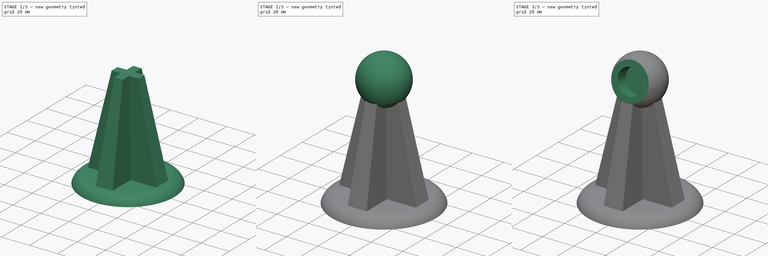
[diagram: build sequence overview — one tinted view per stage of 3, left to right]
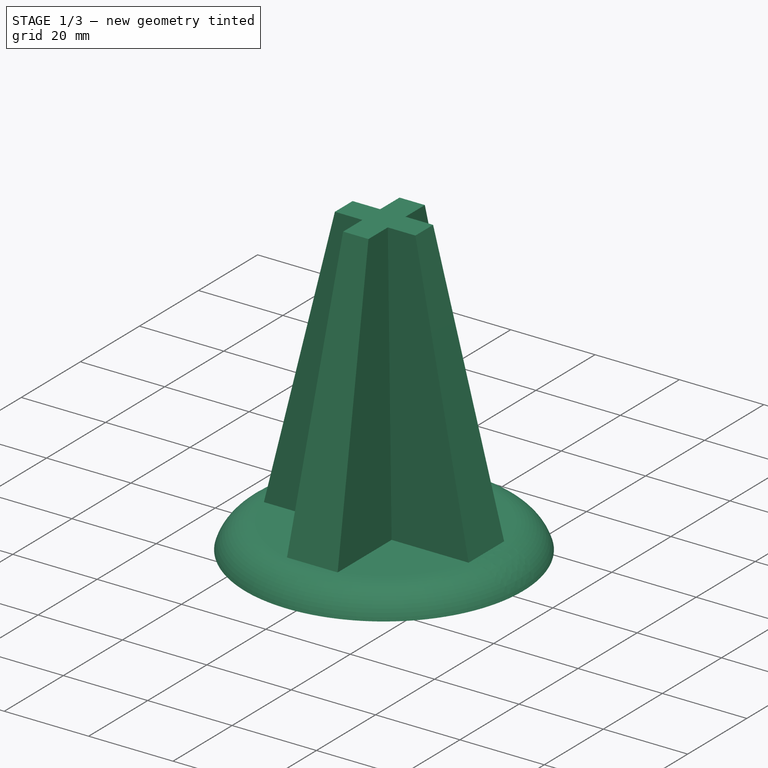
[diagram: stage 1 of 3 — iso view after this stage's code; geometry added in this stage tinted green]
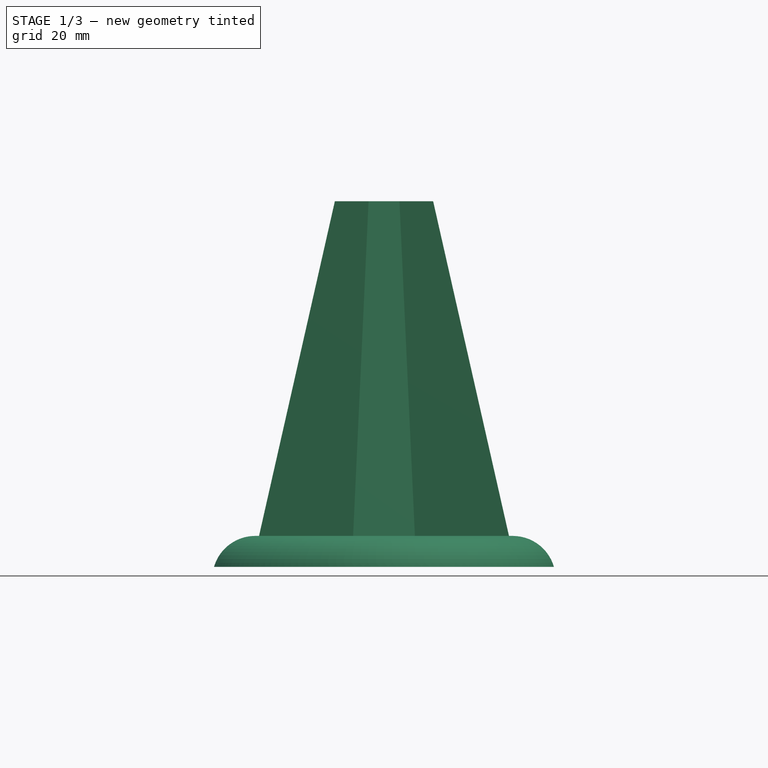
[diagram: stage 1 of 3 — front view after this stage's code; geometry added in this stage tinted green]
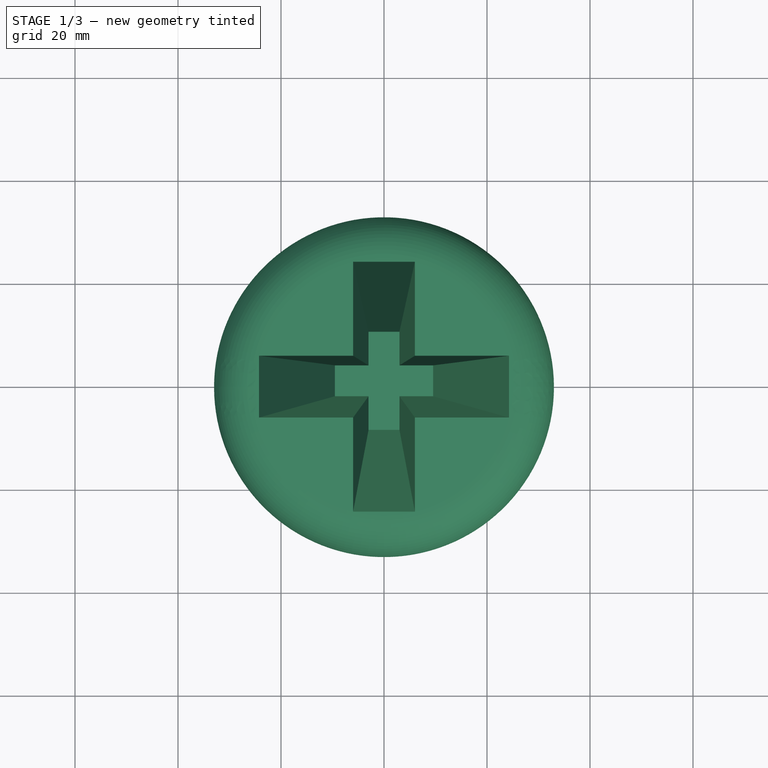
[diagram: stage 1 of 3 — top view after this stage's code; geometry added in this stage tinted green]
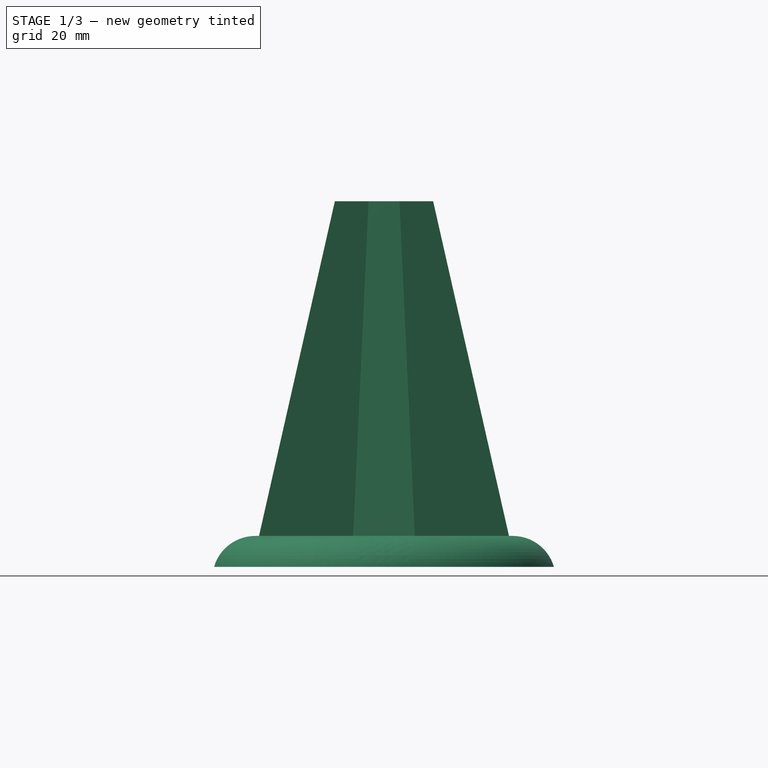
[diagram: stage 1 of 3 — right view after this stage's code; geometry added in this stage tinted green]
FCSTD DOCUMENT  (FreeCAD 0.20R29410 (Git))
Label: MangoJelly_Solutions_Tutorial_Ep12_1
License: All rights reserved
LicenseURL: http://en.wikipedia.org/wiki/All_rights_reserved
objects: Sketcher::SketchObject×6, PartDesign::Pocket×2, PartDesign::Revolution×1, PartDesign::AdditiveLoft×1, PartDesign::AdditiveSphere×1, PartDesign::Plane×1, PartDesign::Body×1, TechDraw::DrawSVGTemplate×1, TechDraw::DrawViewPart×1, TechDraw::DrawViewAnnotation×1, TechDraw::DrawPage×1
note: 18 computed .brp shape members not serialized (recipe doc carries the construction recipe); baked Part::Feature solids carry a one-line shape summary decoded from their .brp

FEATURE [Sketcher::SketchObject] Sketch  label="MasterSketch"
  FullyConstrained = true
  MapMode = 5
  Placement = pos=(0,0,0) rot=(1,0,0;1.5708rad)
  Support = -> [XZ_Plane]
  sketch-geometry (8):
    g0: LineSegment StartX=-25 StartY=0 StartZ=0 EndX=0 EndY=0 EndZ=0
    g1: LineSegment StartX=0 StartY=0 StartZ=0 EndX=25 EndY=0 EndZ=0
    g2: LineSegment StartX=25 StartY=0 StartZ=0 EndX=25 EndY=6 EndZ=0
    g3: LineSegment StartX=0 StartY=0 StartZ=0 EndX=0 EndY=65 EndZ=0
    g4: Circle CenterX=0 CenterY=65 CenterZ=0 NormalX=0 NormalY=0 NormalZ=1 AngleXU=0 Radius=15
    g5: LineSegment StartX=0 StartY=65 StartZ=0 EndX=10 EndY=65 EndZ=0
    g6: LineSegment StartX=-25 StartY=0 StartZ=0 EndX=-33 EndY=0 EndZ=0
    g7: LineSegment StartX=0 StartY=65 StartZ=0 EndX=-8 EndY=65 EndZ=0
  constraints (23):
    c: PointOnObject(g0,g-1)
    c: Coincident(g0,g-1)
    c: Coincident(g0,g1)
    c: PointOnObject(g1,g-1)
    c: Coincident(g1,g2)
    c: Vertical(g2)
    c: DistanceX(g0,g0) = 25  'BaseProfileRadius'
    c: Equal(g1,g0)
    c: DistanceY(g2,g2) = 6  'BaseThickness'
    c: Coincident(g3,g0)
    c: PointOnObject(g3,g-2)
    c: DistanceY(g3,g3) = 65  'LoftHeight'
    c: Coincident(g4,g3)
    c: Radius(g4) = 15  'SphereRadius'
    c: Coincident(g5,g3)
    c: Horizontal(g5)
    c: DistanceX(g5,g5) = 10  'TopProfileRadius'
    c: Coincident(g6,g0)
    c: Horizontal(g6)
    c: DistanceX(g6,g6) = 8  'Overhang'
    c: Coincident(g7,g3)
    c: Horizontal(g7)
    c: DistanceX(g7,g7) = 8  'SphereHoleRadius'
FEATURE [Sketcher::SketchObject] Sketch001
  FullyConstrained = true
  MapMode = 5
  Placement = pos=(0,0,0) rot=(1,0,0;1.5708rad)
  Support = -> [XZ_Plane]
  expr: Constraints[12] = <<MasterSketch>>.Constraints.Overhang
  expr: Constraints[5] = <<MasterSketch>>.Constraints.BaseThickness
  expr: Constraints[7] = <<MasterSketch>>.Constraints.BaseProfileRadius
  sketch-geometry (5):
    g0: LineSegment StartX=0 StartY=-6 StartZ=0 EndX=-25 EndY=-6 EndZ=0
    g1: LineSegment StartX=-25 StartY=-6 StartZ=0 EndX=-33 EndY=-6 EndZ=0
    g2: LineSegment StartX=0 StartY=-6 StartZ=0 EndX=0 EndY=0 EndZ=0
    g3: ArcOfCircle CenterX=-25 CenterY=-8.33333 CenterZ=0 NormalX=0 NormalY=0 NormalZ=1 AngleXU=0 Radius=8.33333 StartAngle=1.5708 EndAngle=2.8578
    g4: LineSegment StartX=-25 StartY=0 StartZ=0 EndX=0 EndY=0 EndZ=0
  constraints (14):
    c: PointOnObject(g0,g-2)
    c: Horizontal(g0)
    c: Coincident(g0,g1)
    c: Coincident(g2,g0)
    c: Coincident(g2,g-1)
    c: DistanceY(g2,g2) = 6
    c: Horizontal(g1)
    c: DistanceX(g0,g0) = 25
    c: Coincident(g3,g1)
    c: PointOnObject(g3,g-1)
    c: Vertical(g0,g3)
    c: Coincident(g4,g2)
    c: DistanceX(g1,g1) = 8
    c: Tangent(g4,g3) = 1.5708
FEATURE [PartDesign::Revolution] Revolution
  Angle = 360
  Axis = (0,2e-16,1)
  Base = (0,0,0)
  Placement = pos=(0,0,0) rot=(1,0,0;1.5708rad)
  Profile = -> Sketch001
  ReferenceAxis = -> Sketch001 [V_Axis]
FEATURE [Sketcher::SketchObject] Sketch002  label="BottomProfile"
  ExternalGeometry = -> [Revolution]
  FullyConstrained = true
  MapMode = 5
  Placement = pos=(0,0,0) rot=(0,0,1;3.14159rad)
  Support = -> [Revolution]
  sketch-geometry (13):
    g0: Circle CenterX=0 CenterY=0 CenterZ=0 NormalX=0 NormalY=0 NormalZ=1 AngleXU=0 Radius=25
    g1: LineSegment StartX=-6 StartY=24.2693 StartZ=0 EndX=6 EndY=24.2693 EndZ=0
    g2: LineSegment StartX=6 StartY=24.2693 StartZ=0 EndX=6 EndY=6 EndZ=0
    g3: LineSegment StartX=6 StartY=6 StartZ=0 EndX=24.2693 EndY=6 EndZ=0
    g4: LineSegment StartX=24.2693 StartY=6 StartZ=0 EndX=24.2693 EndY=-6 EndZ=0
    g5: LineSegment StartX=24.2693 StartY=-6 StartZ=0 EndX=6 EndY=-6 EndZ=0
    g6: LineSegment StartX=6 StartY=-6 StartZ=0 EndX=6 EndY=-24.2693 EndZ=0
    g7: LineSegment StartX=6 StartY=-24.2693 StartZ=0 EndX=-6 EndY=-24.2693 EndZ=0
    g8: LineSegment StartX=-6 StartY=-24.2693 StartZ=0 EndX=-6 EndY=-6 EndZ=0
    g9: LineSegment StartX=-6 StartY=-6 StartZ=0 EndX=-24.2693 EndY=-6 EndZ=0
    g10: LineSegment StartX=-24.2693 StartY=-6 StartZ=0 EndX=-24.2693 EndY=6 EndZ=0
    g11: LineSegment StartX=-24.2693 StartY=6 StartZ=0 EndX=-6 EndY=6 EndZ=0
    g12: LineSegment StartX=-6 StartY=6 StartZ=0 EndX=-6 EndY=24.2693 EndZ=0
  constraints (38):
    c: Coincident(g0,g-1)
    c: PointOnObject(g1,g0)
    c: PointOnObject(g1,g0)
    c: Horizontal(g1)
    c: Coincident(g1,g2)
    c: Vertical(g2)
    c: Coincident(g2,g3)
    c: PointOnObject(g3,g0)
    c: Horizontal(g3)
    c: Coincident(g3,g4)
    c: PointOnObject(g4,g0)
    c: Vertical(g4)
    c: Coincident(g4,g5)
    c: Horizontal(g5)
    c: Coincident(g5,g6)
    c: PointOnObject(g6,g0)
    c: Vertical(g6)
    c: Coincident(g6,g7)
    c: PointOnObject(g7,g0)
    c: Horizontal(g7)
    c: Coincident(g7,g8)
    c: Vertical(g8)
    c: Coincident(g8,g9)
    c: PointOnObject(g9,g0)
    c: Horizontal(g9)
    c: Coincident(g9,g10)
    c: PointOnObject(g10,g0)
    c: Vertical(g10)
    c: Coincident(g10,g11)
    c: Horizontal(g11)
    c: Coincident(g11,g12)
    c: Coincident(g12,g1)
    c: Vertical(g12)
    c: Vertical(g11,g8)
    c: Horizontal(g2,g11)
    c: Equal(g11,g12)
    c: Equal(g0,g-3)
    c: DistanceX(g1,g1) = 12
FEATURE [Sketcher::SketchObject] Sketch003  label="TopProfile"
  AttachmentOffset = pos=(0,0,65) rot=(0,0,1;0rad)
  FullyConstrained = true
  MapMode = 5
  Placement = pos=(0,4.3e-14,65) rot=(0,0,1;3.14159rad)
  Support = -> [Revolution]
  expr: .AttachmentOffset.Base.z = <<MasterSketch>>.Constraints.LoftHeight
  expr: Constraints[36] = <<MasterSketch>>.Constraints.TopProfileRadius
  sketch-geometry (13):
    g0: Circle CenterX=0 CenterY=0 CenterZ=0 NormalX=0 NormalY=0 NormalZ=1 AngleXU=0 Radius=10
    g1: LineSegment StartX=-3 StartY=9.53939 StartZ=0 EndX=3 EndY=9.53939 EndZ=0
    g2: LineSegment StartX=3 StartY=9.53939 StartZ=0 EndX=3 EndY=3 EndZ=0
    g3: LineSegment StartX=3 StartY=3 StartZ=0 EndX=9.53939 EndY=3 EndZ=0
    g4: LineSegment StartX=9.53939 StartY=3 StartZ=0 EndX=9.53939 EndY=-3 EndZ=0
    g5: LineSegment StartX=9.53939 StartY=-3 StartZ=0 EndX=3 EndY=-3 EndZ=0
    g6: LineSegment StartX=3 StartY=-3 StartZ=0 EndX=3 EndY=-9.53939 EndZ=0
    g7: LineSegment StartX=3 StartY=-9.53939 StartZ=0 EndX=-3 EndY=-9.53939 EndZ=0
    g8: LineSegment StartX=-3 StartY=-9.53939 StartZ=0 EndX=-3 EndY=-3 EndZ=0
    g9: LineSegment StartX=-3 StartY=-3 StartZ=0 EndX=-9.53939 EndY=-3 EndZ=0
    g10: LineSegment StartX=-9.53939 StartY=-3 StartZ=0 EndX=-9.53939 EndY=3 EndZ=0
    g11: LineSegment StartX=-9.53939 StartY=3 StartZ=0 EndX=-3 EndY=3 EndZ=0
    g12: LineSegment StartX=-3 StartY=3 StartZ=0 EndX=-3 EndY=9.53939 EndZ=0
  constraints (38):
    c: Coincident(g0,g-1)
    c: PointOnObject(g1,g0)
    c: PointOnObject(g1,g0)
    c: Horizontal(g1)
    c: Coincident(g1,g2)
    c: Vertical(g2)
    c: Coincident(g2,g3)
    c: PointOnObject(g3,g0)
    c: Horizontal(g3)
    c: Coincident(g3,g4)
    c: PointOnObject(g4,g0)
    c: Vertical(g4)
    c: Coincident(g4,g5)
    c: Horizontal(g5)
    c: Coincident(g5,g6)
    c: PointOnObject(g6,g0)
    c: Vertical(g6)
    c: Coincident(g6,g7)
    c: PointOnObject(g7,g0)
    c: Horizontal(g7)
    c: Coincident(g7,g8)
    c: Vertical(g8)
    c: Coincident(g8,g9)
    c: PointOnObject(g9,g0)
    c: Horizontal(g9)
    c: Coincident(g9,g10)
    c: PointOnObject(g10,g0)
    c: Vertical(g10)
    c: Coincident(g10,g11)
    c: Horizontal(g11)
    c: Coincident(g11,g12)
    c: Coincident(g12,g1)
    c: Vertical(g12)
    c: Vertical(g11,g8)
    c: Horizontal(g2,g11)
    c: Equal(g11,g12)
    c: Radius(g0) = 10
    c: DistanceX(g1,g1) = 6
FEATURE [PartDesign::AdditiveLoft] AdditiveLoft
  BaseFeature = -> Revolution
  Closed = false
  Placement = pos=(0,0,0) rot=(1,0,0;1.5708rad)
  Profile = -> Sketch002
  Ruled = false
  Sections = -> [Sketch003]
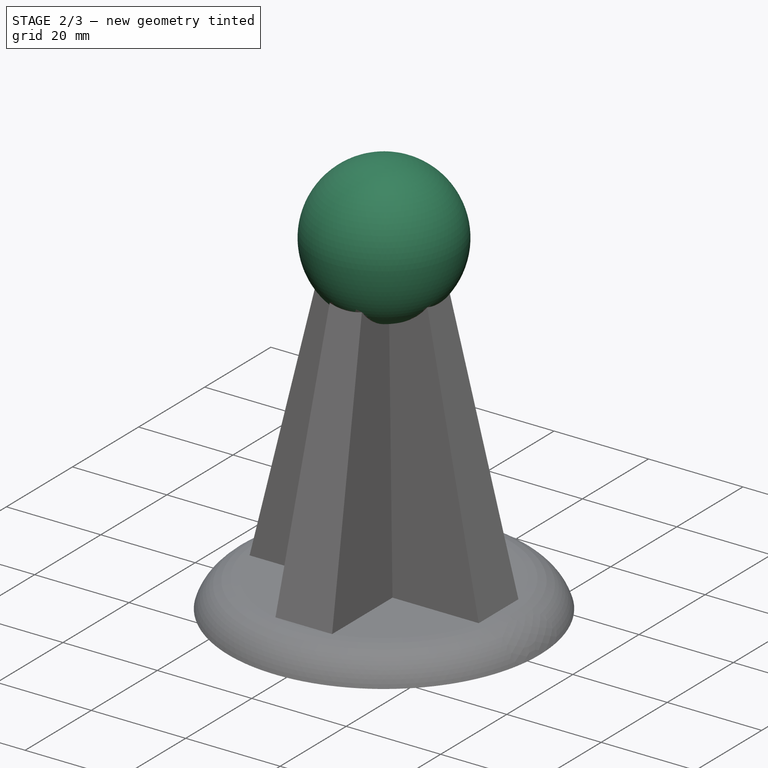
[diagram: stage 2 of 3 — iso view after this stage's code; geometry added in this stage tinted green]
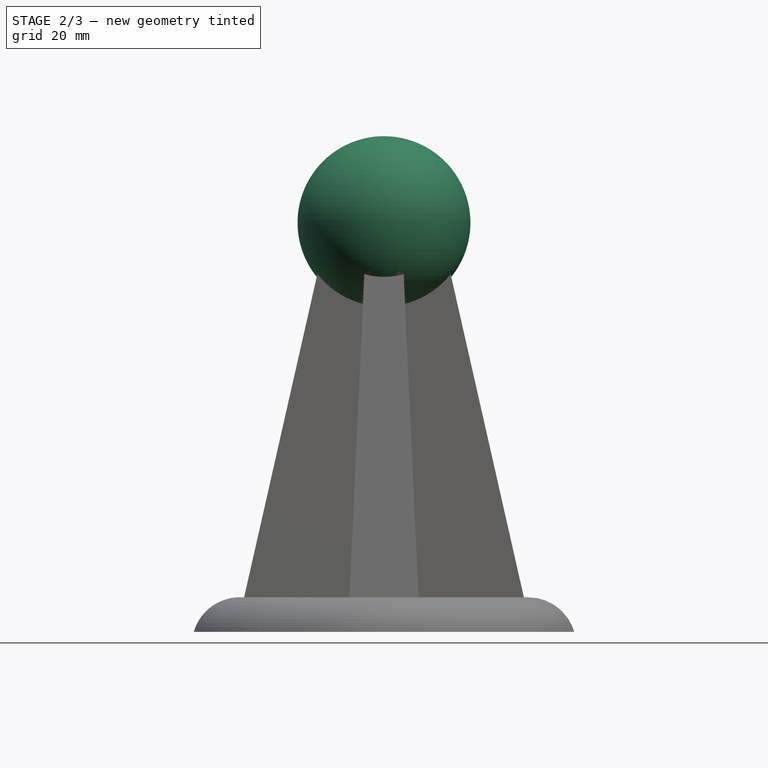
[diagram: stage 2 of 3 — front view after this stage's code; geometry added in this stage tinted green]
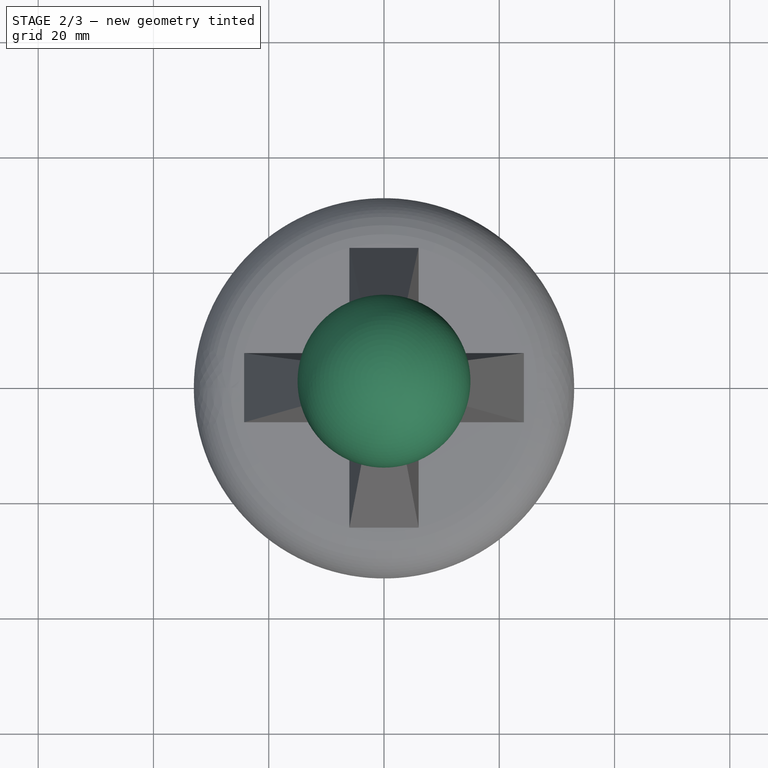
[diagram: stage 2 of 3 — top view after this stage's code; geometry added in this stage tinted green]
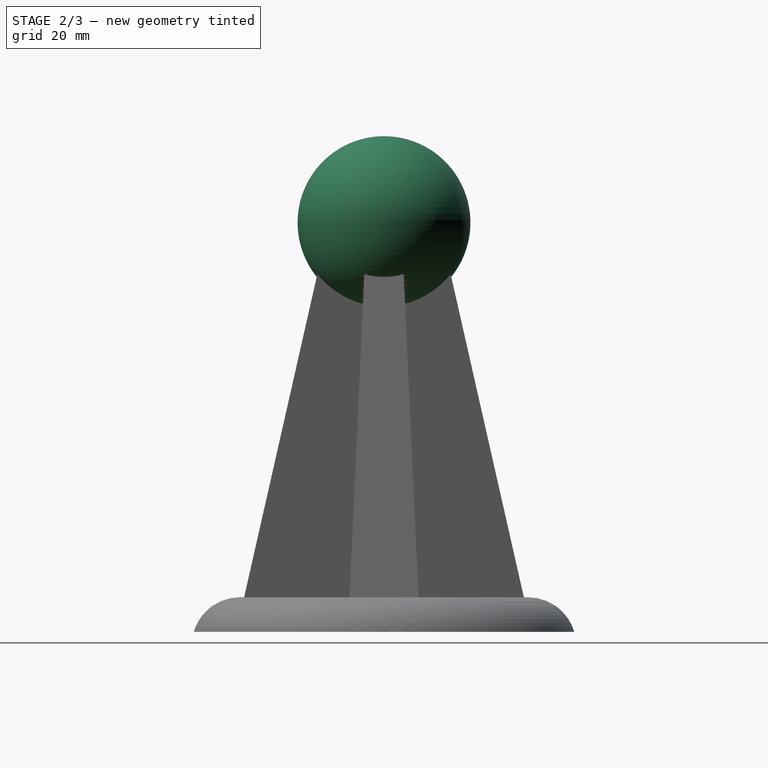
[diagram: stage 2 of 3 — right view after this stage's code; geometry added in this stage tinted green]
FEATURE [PartDesign::AdditiveSphere] Sphere
  Angle1 = -90
  Angle2 = 90
  Angle3 = 360
  AttacherType = Attacher::AttachEngine3D
  BaseFeature = -> AdditiveLoft
  MapMode = 5
  Placement = pos=(0,1.44e-14,65) rot=(0,0,1;3.14159rad)
  Radius = 15
  Support = -> [AdditiveLoft]
  expr: Radius = <<MasterSketch>>.Constraints.SphereRadius
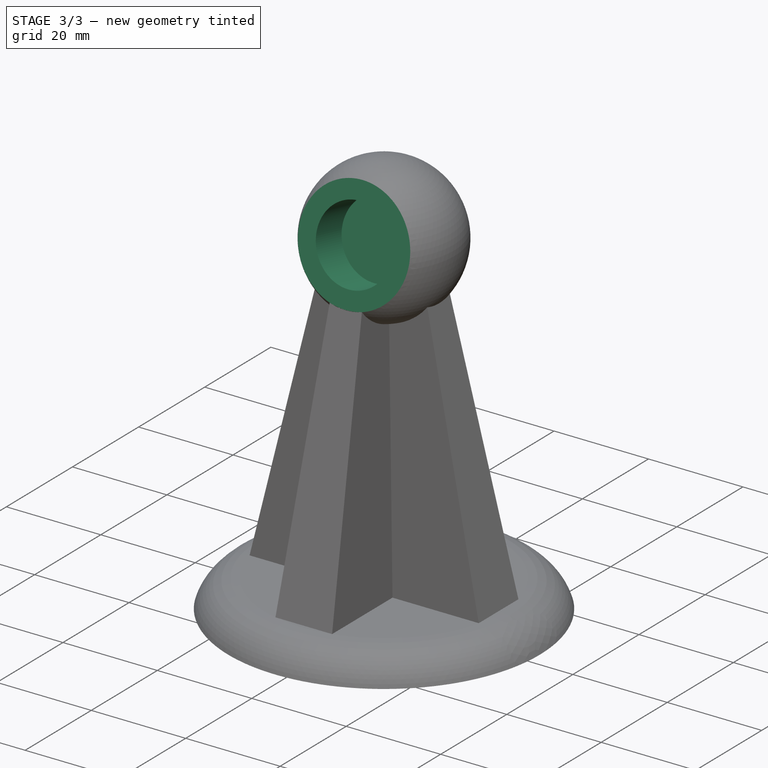
[diagram: stage 3 of 3 — iso view after this stage's code; geometry added in this stage tinted green]
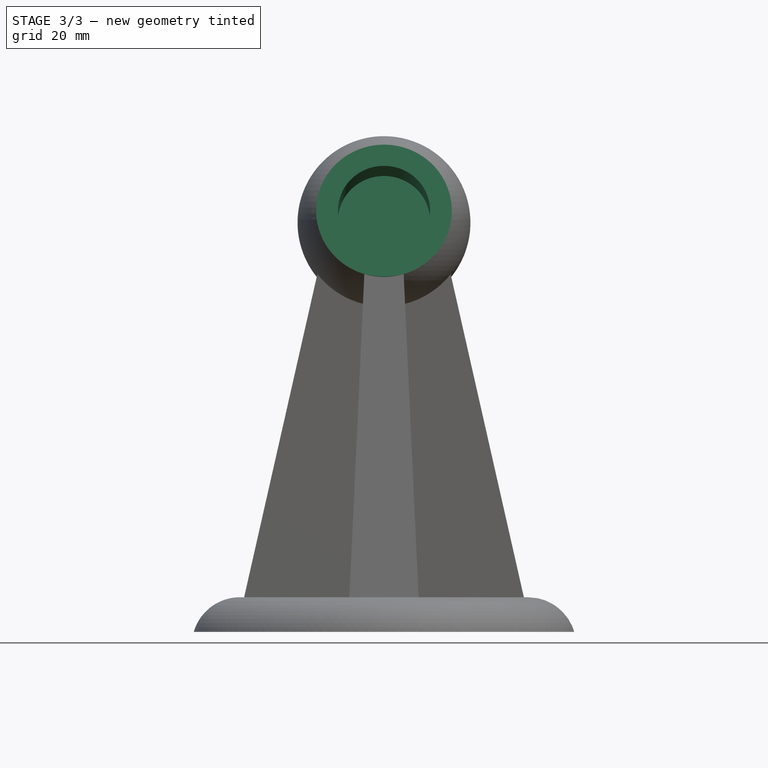
[diagram: stage 3 of 3 — front view after this stage's code; geometry added in this stage tinted green]
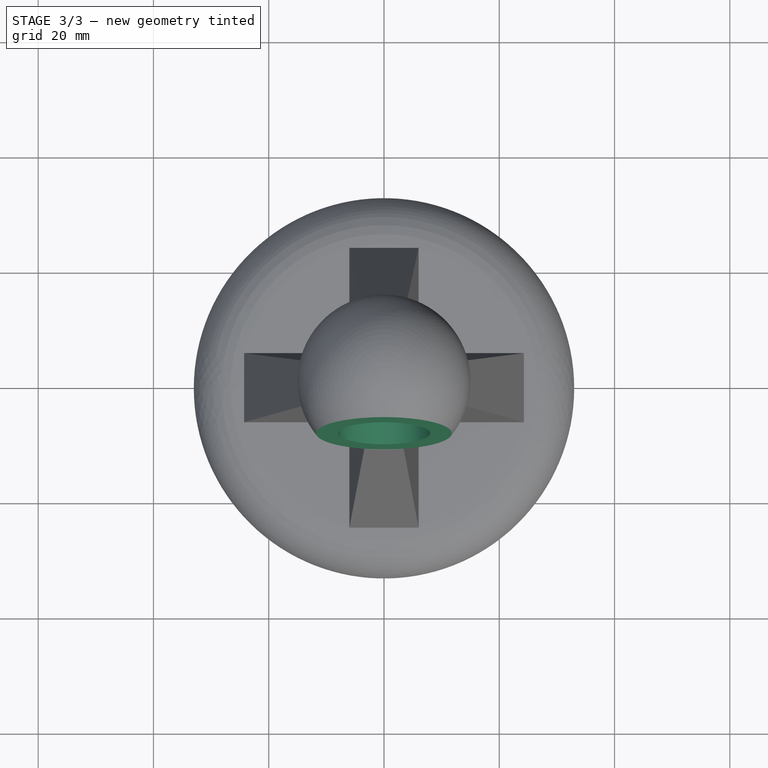
[diagram: stage 3 of 3 — top view after this stage's code; geometry added in this stage tinted green]
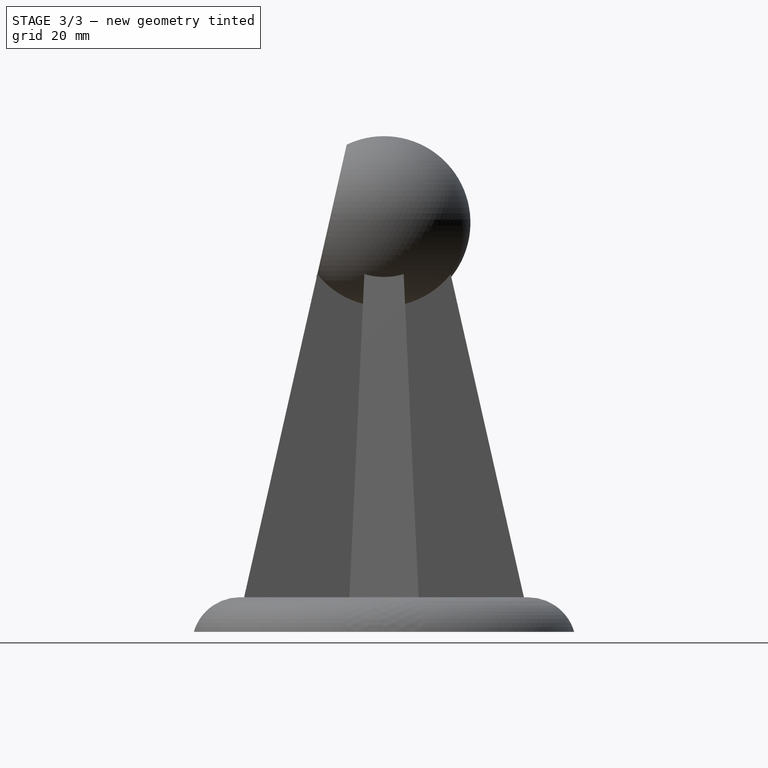
[diagram: stage 3 of 3 — right view after this stage's code; geometry added in this stage tinted green]
FEATURE [PartDesign::Plane] DatumPlane
  Length = 83.5682
  MapMode = 45
  Placement = pos=(7.28e-14,-18.5276,25.3368) rot=(-1,0,0;1.79365rad)
  ResizeMode = 0
  Support = -> [Sphere]
  Width = 134.479
FEATURE [Sketcher::SketchObject] Sketch004
  ExternalGeometry = -> [Sphere]
  FullyConstrained = true
  MapMode = 5
  Placement = pos=(7.28e-14,-18.5276,25.3368) rot=(0,-0.624095,0.781348;3.14159rad)
  Support = -> [DatumPlane]
  sketch-geometry (1):
    g0: Circle CenterX=0 CenterY=-44.2365 CenterZ=0 NormalX=0 NormalY=0 NormalZ=1 AngleXU=0 Radius=13.1697
  constraints (3):
    c: PointOnObject(g0,g-2)
    c: PointOnObject(g-3,g0)
    c: PointOnObject(g-4,g0)
FEATURE [PartDesign::Pocket] Pocket
  BaseFeature = -> Sphere
  Direction = (-1e-16,0.975271,-0.22101)
  Length = 15
  Length2 = 5
  Placement = pos=(0,-1.4e-14,65) rot=(0,0,1;3.14159rad)
  Profile = -> Sketch004
  ReferenceAxis = -> Sketch004 [N_Axis]
  Reversed = true
  Type = 1
FEATURE [Sketcher::SketchObject] Sketch005
  FullyConstrained = true
  MapMode = 5
  Placement = pos=(-5e-16,-9.07343,67.0562) rot=(1,0,0;1.34795rad)
  Support = -> [Pocket]
  expr: Constraints[1] = <<MasterSketch>>.Constraints.SphereHoleRadius
  sketch-geometry (1):
    g0: Circle CenterX=0 CenterY=0 CenterZ=0 NormalX=0 NormalY=0 NormalZ=1 AngleXU=0 Radius=8
  constraints (2):
    c: Coincident(g0,g-1)
    c: Radius(g0) = 8
FEATURE [PartDesign::Pocket] Pocket001
  BaseFeature = -> Pocket
  Direction = (-1e-16,0.975271,-0.22101)
  Length = 8
  Length2 = 5
  Placement = pos=(0,-1.4e-14,65) rot=(0,0,1;3.14159rad)
  Profile = -> Sketch005
  ReferenceAxis = -> Sketch005 [N_Axis]
  Type = 0
FEATURE [PartDesign::Body] Body
  Group = -> [Sketch,Sketch001,Revolution,Sketch002,Sketch003,AdditiveLoft,Sphere,DatumPlane,Sketch004,Pocket,Sketch005,Pocket001]
  Origin = -> Origin
  Tip = -> Pocket001
FEATURE [TechDraw::DrawSVGTemplate] Template
  Height = 297
  Orientation = 0
  Width = 210
FEATURE [TechDraw::DrawViewPart] View
  Caption = 3D View
  CoarseView = false
  Direction = (0.584,-0.547,0.599)
  Focus = 100
  HardHidden = false
  IsoCount = 0
  IsoHidden = false
  IsoVisible = false
  LockPosition = false
  Perspective = false
  Rotation = 0
  Scale = 2
  ScaleType = 2
  SeamHidden = false
  SeamVisible = true
  SmoothHidden = false
  SmoothVisible = true
  Source = -> [Body]
  X = 105.269
  XDirection = (0.689,0.725,-0.009)
  Y = 135.282
FEATURE [TechDraw::DrawViewAnnotation] Annotation
  Font = osifont
  LineSpace = 80
  LockPosition = false
  MaxWidth = -1
  Rotation = 0
  ScaleType = 0
  Text = Master Sketch Workflow Model
  TextSize = 12
  TextStyle = 0
  X = 104.247
  Y = 255.066
FEATURE [TechDraw::DrawPage] Page
  KeepUpdated = true
  NextBalloonIndex = 1
  ProjectionType = 0
  Template = -> Template
  Views = -> [View,Annotation]
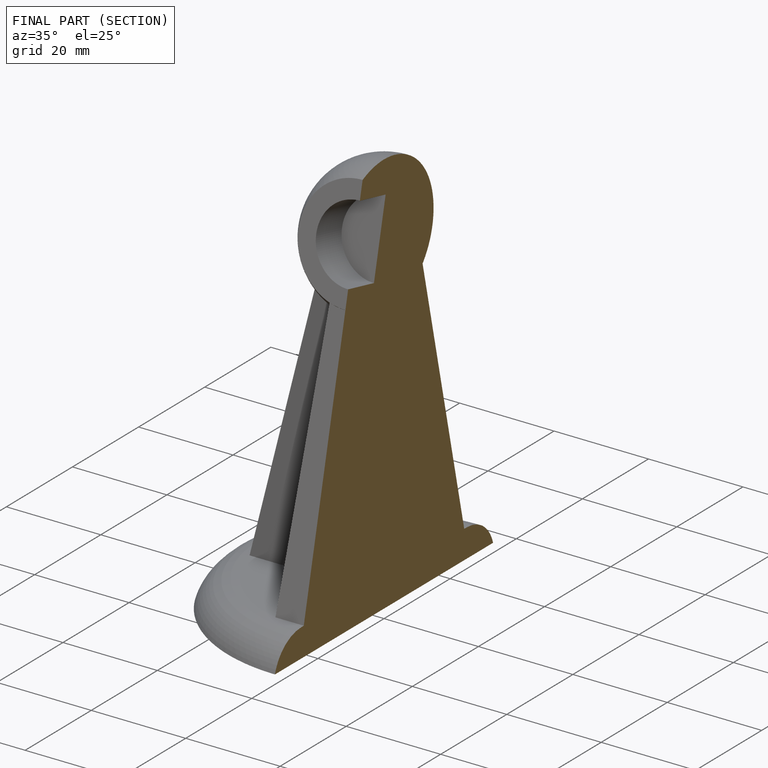
[diagram: finished part — half-section view (interior)]
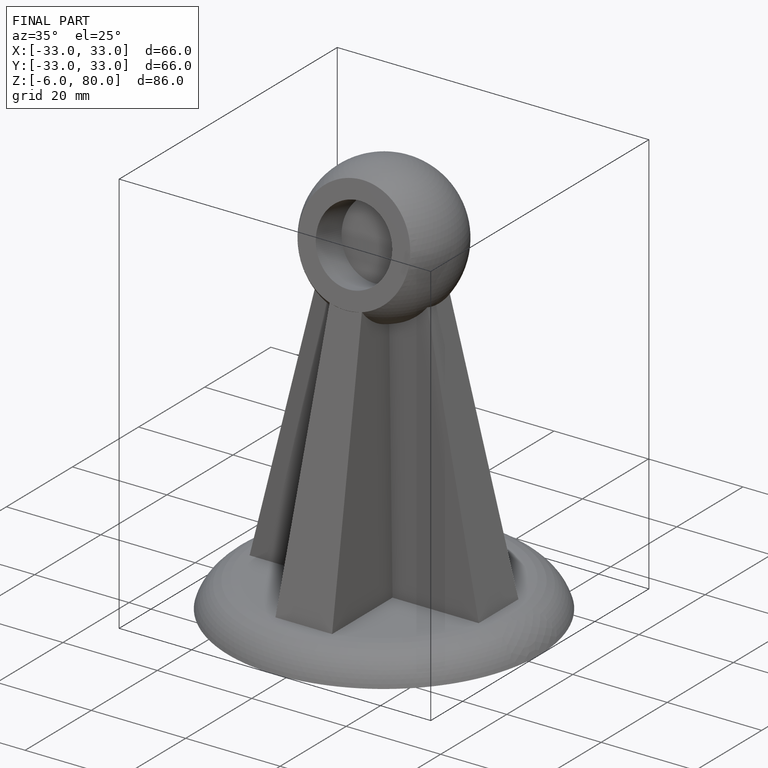
[diagram: finished part — iso view with bounding-box wireframe]
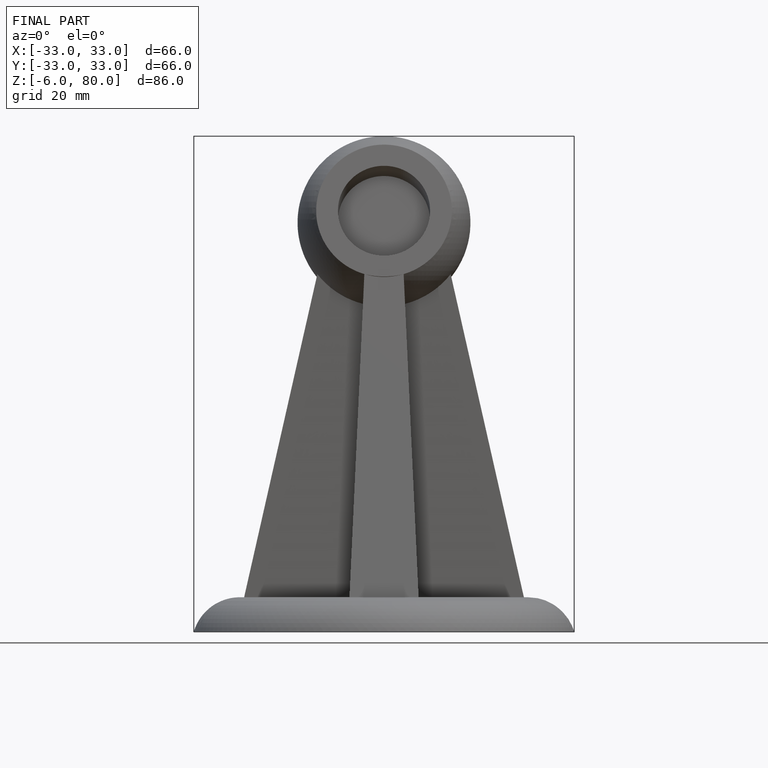
[diagram: finished part — front view with bounding-box wireframe]
